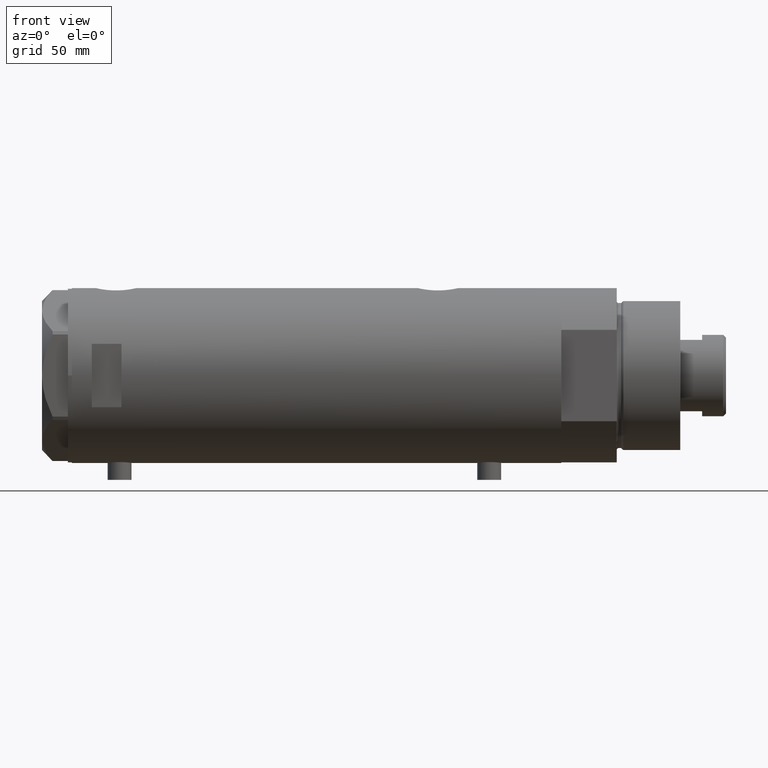
[diagram: clean part render]
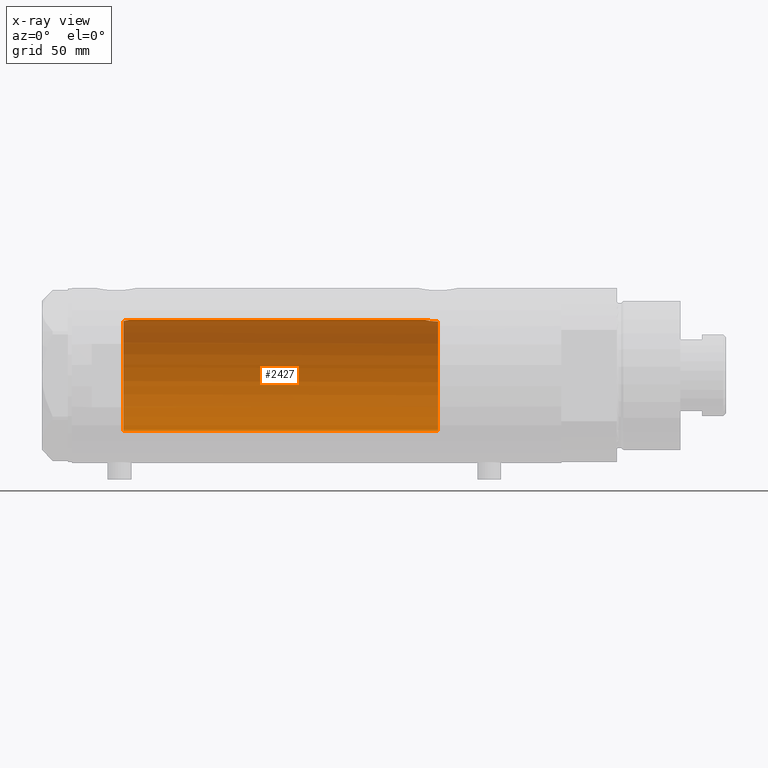
[diagram: x-ray — body ghosted, one internal face saturated and labeled with its STEP entity id]
A machine part, front view, then the same camera in x-ray: the body is ghosted and one INTERNAL B-rep face — a face not visible from any outside direction — is saturated and labeled: STEP entity #2427.
In plain terms, the highlighted cylindrical surface (partial cylindrical patch) has radius 28 mm, axis along (1, 0, -0).
Its self-contained STEP definition (entity closure, byte-faithful):
#45 = CARTESIAN_POINT ( 'NONE',  ( 27.52730847012277948, 5.126288527110444804, 96.76623399461909969 ) ) ;
#100 = CARTESIAN_POINT ( 'NONE',  ( 27.26132124301010506, 6.389601967157234164, -59.46983701249833132 ) ) ;
#118 = ORIENTED_EDGE ( 'NONE', *, *, #3670, .F. ) ;
#137 = CARTESIAN_POINT ( 'NONE',  ( 28.00000000000000000, 3.429011037612589276E-15, 123.2000000000000028 ) ) ;
#143 = CARTESIAN_POINT ( 'NONE',  ( 27.21525044627863466, 6.582564457995937701, -60.98128103916471332 ) ) ;
#189 = CARTESIAN_POINT ( 'NONE',  ( 27.46622653369042411, 5.441176343402230664, 97.20000000000000284 ) ) ;
#278 = ORIENTED_EDGE ( 'NONE', *, *, #3806, .T. ) ;
#368 = CIRCLE ( 'NONE', #1032, 28.00000000000000000 ) ;
#390 = CARTESIAN_POINT ( 'NONE',  ( 27.46622653369042411, 5.441176343402230664, 97.20000000000000284 ) ) ;
#439 = CARTESIAN_POINT ( 'NONE',  ( 27.80267334785860101, 3.323944738624905693, -55.41709962017579727 ) ) ;
#458 = DIRECTION ( 'NONE',  ( -1.000000000000000000, 0.000000000000000000, 0.000000000000000000 ) ) ;
#466 = CARTESIAN_POINT ( 'NONE',  ( 27.77951318121830582, 3.511620812961470772, -55.53115835401438005 ) ) ;
#488 = CARTESIAN_POINT ( 'NONE',  ( 27.55311958554908713, 4.984468698502469763, -56.79897075987406652 ) ) ;
#647 = VERTEX_POINT ( 'NONE', #1720 ) ;
#764 = EDGE_CURVE ( 'NONE', #3939, #647, #1841, .T. ) ;
#789 = CARTESIAN_POINT ( 'NONE',  ( 28.00000000000000711, 0.4344375524774768960, -54.52000000000001734 ) ) ;
#812 = CARTESIAN_POINT ( 'NONE',  ( 27.22604017942136778, 6.537820648187905981, -60.32472952793342102 ) ) ;
#816 = CARTESIAN_POINT ( 'NONE',  ( 27.94984428957576128, 1.729919005741099802, -54.73624844305086157 ) ) ;
#836 = CARTESIAN_POINT ( 'NONE',  ( 27.47751794615729537, 5.385218554237039434, -57.31285718566400789 ) ) ;
#861 = VERTEX_POINT ( 'NONE', #1975 ) ;
#969 = VERTEX_POINT ( 'NONE', #189 ) ;
#1032 = AXIS2_PLACEMENT_3D ( 'NONE', #3957, #1900, #1211 ) ;
#1129 = CARTESIAN_POINT ( 'NONE',  ( 27.92131942247208798, 2.112374604004425116, 94.66259974202708349 ) ) ;
#1136 = DIRECTION ( 'NONE',  ( -0.000000000000000000, -0.000000000000000000, -1.000000000000000000 ) ) ;
#1151 = CARTESIAN_POINT ( 'NONE',  ( 27.21605408577812568, 6.579240077698938371, -61.20000000000000284 ) ) ;
#1211 = DIRECTION ( 'NONE',  ( -1.000000000000000000, 0.000000000000000000, 0.000000000000000000 ) ) ;
#1418 = ORIENTED_EDGE ( 'NONE', *, *, #3693, .F. ) ;
#1470 = CARTESIAN_POINT ( 'NONE',  ( 27.77752716845531822, 3.554080867558359280, 95.33702809021860958 ) ) ;
#1584 = CARTESIAN_POINT ( 'NONE',  ( 27.70785054350542964, 4.050475470458768434, -55.89631279652926565 ) ) ;
#1593 = CYLINDRICAL_SURFACE ( 'NONE', #1972, 28.00000000000000000 ) ;
#1673 = VECTOR ( 'NONE', #2232, 1000.000000000000000 ) ;
#1720 = CARTESIAN_POINT ( 'NONE',  ( -28.00000000000000000, 0.000000000000000000, -61.20000000000000284 ) ) ;
#1778 = CARTESIAN_POINT ( 'NONE',  ( 27.49602064413222635, 5.290780227724656726, 96.97882924682042471 ) ) ;
#1804 = CARTESIAN_POINT ( 'NONE',  ( 27.71586615897684780, 3.998795151939225523, 95.64767395625746360 ) ) ;
#1837 = CARTESIAN_POINT ( 'NONE',  ( 27.65669575048418594, 4.382057994727783345, -56.17233761202034259 ) ) ;
#1841 = LINE ( 'NONE', #2842, #4463 ) ;
#1853 = FACE_OUTER_BOUND ( 'NONE', #4266, .T. ) ;
#1900 = DIRECTION ( 'NONE',  ( 0.000000000000000000, 0.000000000000000000, -1.000000000000000000 ) ) ;
#1909 = CARTESIAN_POINT ( 'NONE',  ( 27.84585502960274539, 2.940342086136627842, -55.20946914370767189 ) ) ;
#1944 = CARTESIAN_POINT ( 'NONE',  ( 27.21605408577812568, 6.579240077698938371, -61.20000000000000284 ) ) ;
#1972 = AXIS2_PLACEMENT_3D ( 'NONE', #3981, #3356, #458 ) ;
#1975 = CARTESIAN_POINT ( 'NONE',  ( 28.00000000000000000, 0.000000000000000000, 94.32000000000000739 ) ) ;
#1978 = CIRCLE ( 'NONE', #3905, 28.00000000000000000 ) ;
#2092 = ORIENTED_EDGE ( 'NONE', *, *, #764, .T. ) ;
#2119 = VERTEX_POINT ( 'NONE', #2869 ) ;
#2190 = CARTESIAN_POINT ( 'NONE',  ( 27.21712162367727927, 6.574850051620745539, -60.76016190408789441 ) ) ;
#2232 = DIRECTION ( 'NONE',  ( -0.000000000000000000, -0.000000000000000000, -1.000000000000000000 ) ) ;
#2238 = CARTESIAN_POINT ( 'NONE',  ( 27.23306259439848986, 6.508606919525671941, -60.10931986330979981 ) ) ;
#2427 = ADVANCED_FACE ( 'NONE', ( #1853 ), #1593, .F. ) ;
#2491 = ORIENTED_EDGE ( 'NONE', *, *, #2743, .F. ) ;
#2534 = CARTESIAN_POINT ( 'NONE',  ( 27.93969014165221765, 1.855286977351521704, 94.58124112405663197 ) ) ;
#2539 = CARTESIAN_POINT ( 'NONE',  ( 27.92057377942992602, 2.145335874642055440, -54.86449057456584910 ) ) ;
#2558 = LINE ( 'NONE', #137, #1673 ) ;
#2563 = CARTESIAN_POINT ( 'NONE',  ( 27.57921322802619812, 4.838471943606454495, -56.63541026849051718 ) ) ;
#2569 = B_SPLINE_CURVE_WITH_KNOTS ( 'NONE', 3,
 ( #4355, #789, #2572, #816, #2539, #3940, #1909, #439, #466, #1584, #1837, #2563, #488, #3961, #836, #2998, #3347, #4327, #100, #2238, #812, #2190, #143, #1151 ),
 .UNSPECIFIED., .F., .F.,
 ( 4, 2, 2, 2, 2, 2, 2, 2, 2, 2, 2, 4 ),
 ( 0.02064447638625017609, 0.02194711032043802218, 0.02324974425462586480, 0.02390106122171978612, 0.02455237818881370743, 0.02585501212300156393, 0.02650632909009548177, 0.02715764605718940308, 0.02846027999137725611, 0.02976291392556511262, 0.03041423089265904087, 0.03106554785975296912 ),
 .UNSPECIFIED. ) ;
#2572 = CARTESIAN_POINT ( 'NONE',  ( 27.98989376185446076, 0.8673308354119261265, -54.56259295538818321 ) ) ;
#2705 = ORIENTED_EDGE ( 'NONE', *, *, #3720, .T. ) ;
#2743 = EDGE_CURVE ( 'NONE', #2119, #3829, #2569, .T. ) ;
#2842 = CARTESIAN_POINT ( 'NONE',  ( -28.00000000000000000, 0.000000000000000000, 123.2000000000000028 ) ) ;
#2858 = CARTESIAN_POINT ( 'NONE',  ( 27.62184089756353700, 4.590621453796800644, 96.17847296394720047 ) ) ;
#2869 = CARTESIAN_POINT ( 'NONE',  ( 28.00000000000000000, 8.058211040235281960E-16, -54.52000000000001023 ) ) ;
#2884 = CARTESIAN_POINT ( 'NONE',  ( 27.85549123290575579, 2.850830541327404877, 94.96370468682906107 ) ) ;
#2954 = DIRECTION ( 'NONE',  ( 0.000000000000000000, 0.000000000000000000, 1.000000000000000000 ) ) ;
#2998 = CARTESIAN_POINT ( 'NONE',  ( 27.40633791352276916, 5.740289853568789624, -57.85469713442368800 ) ) ;
#3206 = CARTESIAN_POINT ( 'NONE',  ( 27.59012538417911031, 4.776664836238046163, 96.36675298569846859 ) ) ;
#3342 = CARTESIAN_POINT ( 'NONE',  ( 28.00000000000000000, 0.000000000000000000, 94.32000000000000739 ) ) ;
#3347 = CARTESIAN_POINT ( 'NONE',  ( 27.36295003163000672, 5.941130795499224959, -58.23794896005178856 ) ) ;
#3356 = DIRECTION ( 'NONE',  ( -0.000000000000000000, -0.000000000000000000, -1.000000000000000000 ) ) ;
#3479 = CARTESIAN_POINT ( 'NONE',  ( 27.98435453724556510, 1.072101232728050579, 94.38566097371688102 ) ) ;
#3670 = EDGE_CURVE ( 'NONE', #969, #861, #3702, .T. ) ;
#3693 = EDGE_CURVE ( 'NONE', #861, #2119, #2558, .T. ) ;
#3702 = B_SPLINE_CURVE_WITH_KNOTS ( 'NONE', 3,
 ( #390, #1778, #45, #3206, #2858, #1804, #1470, #2884, #4282, #1129, #2534, #3479, #3984, #3342 ),
 .UNSPECIFIED., .F., .F.,
 ( 4, 2, 2, 2, 2, 2, 4 ),
 ( 0.03488855882532450325, 0.03568791961119571754, 0.03648728039706693183, 0.03808600196880933264, 0.03888536275468051917, 0.03968472354055171264, 0.04128344511229409958 ),
 .UNSPECIFIED. ) ;
#3720 = EDGE_CURVE ( 'NONE', #969, #3939, #1978, .T. ) ;
#3742 = CARTESIAN_POINT ( 'NONE',  ( -28.00000000000000000, 0.000000000000000000, 97.20000000000000284 ) ) ;
#3806 = EDGE_CURVE ( 'NONE', #647, #3829, #368, .T. ) ;
#3829 = VERTEX_POINT ( 'NONE', #1944 ) ;
#3905 = AXIS2_PLACEMENT_3D ( 'NONE', #4384, #2954, #4001 ) ;
#3939 = VERTEX_POINT ( 'NONE', #3742 ) ;
#3940 = CARTESIAN_POINT ( 'NONE',  ( 27.86588799758911605, 2.744542339393446717, -55.11578757899567904 ) ) ;
#3957 = CARTESIAN_POINT ( 'NONE',  ( 0.000000000000000000, 0.000000000000000000, -61.20000000000000284 ) ) ;
#3961 = CARTESIAN_POINT ( 'NONE',  ( 27.50226589723265391, 5.257822516958269965, -57.13779315141980675 ) ) ;
#3981 = CARTESIAN_POINT ( 'NONE',  ( 0.000000000000000000, 0.000000000000000000, 123.2000000000000028 ) ) ;
#3984 = CARTESIAN_POINT ( 'NONE',  ( 28.00000000000000355, 0.5407212781083803321, 94.32000000000002160 ) ) ;
#4001 = DIRECTION ( 'NONE',  ( 1.000000000000000000, 0.000000000000000000, 0.000000000000000000 ) ) ;
#4266 = EDGE_LOOP ( 'NONE', ( #1418, #118, #2705, #2092, #278, #2491 ) ) ;
#4282 = CARTESIAN_POINT ( 'NONE',  ( 27.87926027245440608, 2.609415915507860895, 94.85365920364242243 ) ) ;
#4327 = CARTESIAN_POINT ( 'NONE',  ( 27.28989504668422228, 6.268149480003692098, -59.05093353430706316 ) ) ;
#4355 = CARTESIAN_POINT ( 'NONE',  ( 28.00000000000000000, 8.058211040235281960E-16, -54.52000000000001023 ) ) ;
#4384 = CARTESIAN_POINT ( 'NONE',  ( 0.000000000000000000, 0.000000000000000000, 97.20000000000000284 ) ) ;
#4463 = VECTOR ( 'NONE', #1136, 1000.000000000000000 ) ;